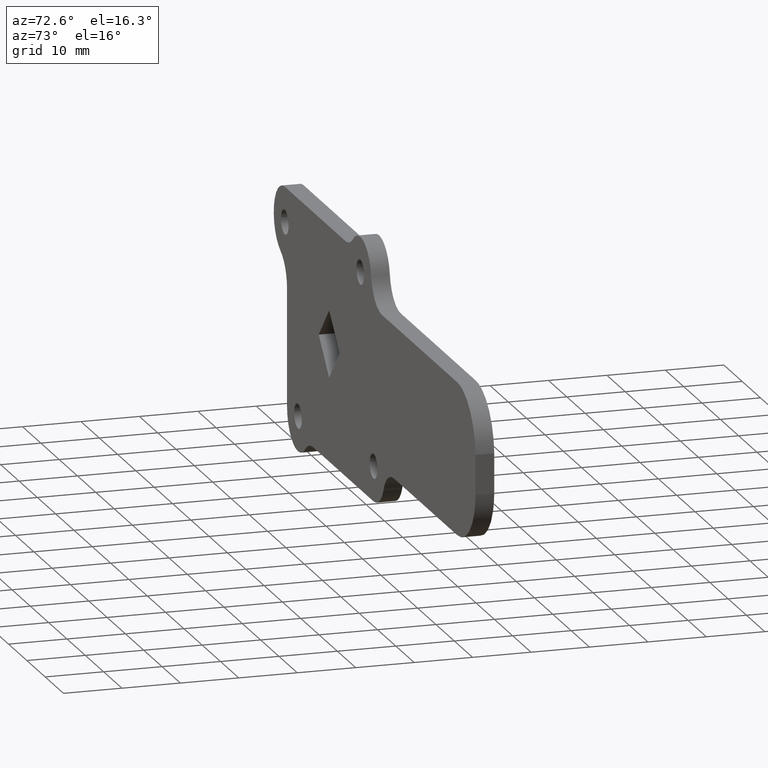
[diagram: clean part render]
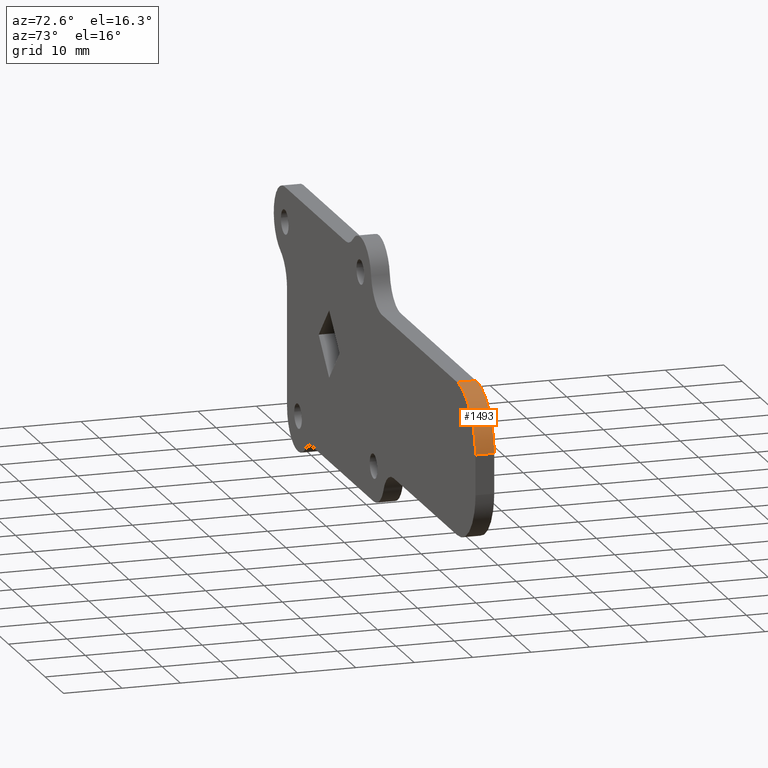
[diagram: same view with one face highlighted and labeled with its STEP entity id]
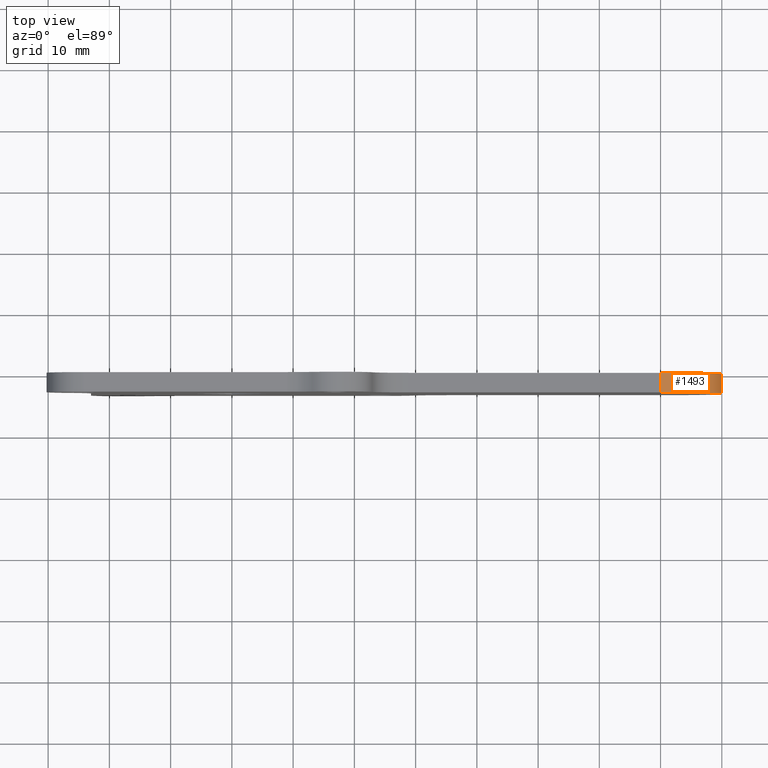
[diagram: same view with one face highlighted and labeled with its STEP entity id]
A machine part, auxiliary view. The second image highlights one B-rep face of the part: STEP entity #1493.
A second angle (top view) of the same face is appended — the face is thin or edge-on in the first view.
In plain terms, the highlighted face is a freeform B-spline surface patch.
Its self-contained STEP definition (entity closure, byte-faithful):
#850=CARTESIAN_POINT('',(69.935685229771096,0.0,12.999999938013421));
#851=VERTEX_POINT('',#850);
#857=CARTESIAN_POINT('',(79.926497335431591,0.0,3.428571366584855));
#858=VERTEX_POINT('',#857);
#859=CARTESIAN_POINT('',(79.926497335431591,0.0,3.428571366584852));
#860=CARTESIAN_POINT('',(79.515916016020881,0.0,12.999999938013415));
#861=CARTESIAN_POINT('',(69.935685229771096,0.0,12.999999938013421));
#869=(BOUNDED_CURVE()B_SPLINE_CURVE(2,(#859,#860,#861),.UNSPECIFIED.,.F.,.U.)CURVE()GEOMETRIC_REPRESENTATION_ITEM()QUASI_UNIFORM_CURVE()RATIONAL_B_SPLINE_CURVE((1.0,0.722100111777150,1.0))REPRESENTATION_ITEM(''));
#870=EDGE_CURVE('',#858,#851,#869,.T.);
#1192=CARTESIAN_POINT('',(79.926497335431591,-3.200000000000000,3.428571366584855));
#1193=VERTEX_POINT('',#1192);
#1207=CARTESIAN_POINT('',(69.935685229771096,-3.200000000000000,12.999999938013421));
#1208=VERTEX_POINT('',#1207);
#1209=CARTESIAN_POINT('',(79.926497335431591,-3.200000000000000,3.428571366584852));
#1210=CARTESIAN_POINT('',(79.515916016020881,-3.200000000000001,12.999999938013415));
#1211=CARTESIAN_POINT('',(69.935685229771096,-3.200000000000000,12.999999938013421));
#1219=(BOUNDED_CURVE()B_SPLINE_CURVE(2,(#1209,#1210,#1211),.UNSPECIFIED.,.F.,.U.)CURVE()GEOMETRIC_REPRESENTATION_ITEM()QUASI_UNIFORM_CURVE()RATIONAL_B_SPLINE_CURVE((1.0,0.722100111777150,1.0))REPRESENTATION_ITEM(''));
#1220=EDGE_CURVE('',#1193,#1208,#1219,.T.);
#1461=CARTESIAN_POINT('',(69.935685229771096,-3.200000000000000,12.999999938013421));
#1462=CARTESIAN_POINT('',(69.935685229771096,0.0,12.999999938013421));
#1463=QUASI_UNIFORM_CURVE('',1,(#1461,#1462),.UNSPECIFIED.,.F.,.U.);
#1464=EDGE_CURVE('',#1208,#851,#1463,.T.);
#1469=CARTESIAN_POINT('',(79.935682319246268,-3.280000000000001,2.992370358217429));
#1470=CARTESIAN_POINT('',(79.935682319246268,0.082000000000000,2.992370358217429));
#1471=CARTESIAN_POINT('',(79.943722218799522,-3.280000000000000,13.530168543973826));
#1472=CARTESIAN_POINT('',(79.943722218799522,0.082000000000000,13.530168543973826));
#1473=CARTESIAN_POINT('',(69.419944943388799,-3.280000000000001,12.986691680377470));
#1474=CARTESIAN_POINT('',(69.419944943388799,0.082000000000000,12.986691680377470));
#1482=(BOUNDED_SURFACE()B_SPLINE_SURFACE(1,2,((#1469,#1471,#1473),(#1470,#1472,#1474)),.UNSPECIFIED.,.F.,.F.,.U.)B_SPLINE_SURFACE_WITH_KNOTS((2,2),(3,3),(0.0,3.362000000000001),(0.0,17.185356238673432),.UNSPECIFIED.)GEOMETRIC_REPRESENTATION_ITEM()RATIONAL_B_SPLINE_SURFACE(((1.0,0.688354575693755,1.0),(1.0,0.688354575693755,1.0)))REPRESENTATION_ITEM('')SURFACE());
#1483=ORIENTED_EDGE('',*,*,#870,.T.);
#1484=ORIENTED_EDGE('',*,*,#1464,.F.);
#1485=ORIENTED_EDGE('',*,*,#1220,.F.);
#1486=CARTESIAN_POINT('',(79.926497335431591,-3.200000000000000,3.428571366584855));
#1487=CARTESIAN_POINT('',(79.926497335431591,0.0,3.428571366584855));
#1488=QUASI_UNIFORM_CURVE('',1,(#1486,#1487),.UNSPECIFIED.,.F.,.U.);
#1489=EDGE_CURVE('',#1193,#858,#1488,.T.);
#1490=ORIENTED_EDGE('',*,*,#1489,.T.);
#1491=EDGE_LOOP('',(#1483,#1484,#1485,#1490));
#1492=FACE_OUTER_BOUND('',#1491,.T.);
#1493=ADVANCED_FACE('',(#1492),#1482,.T.);